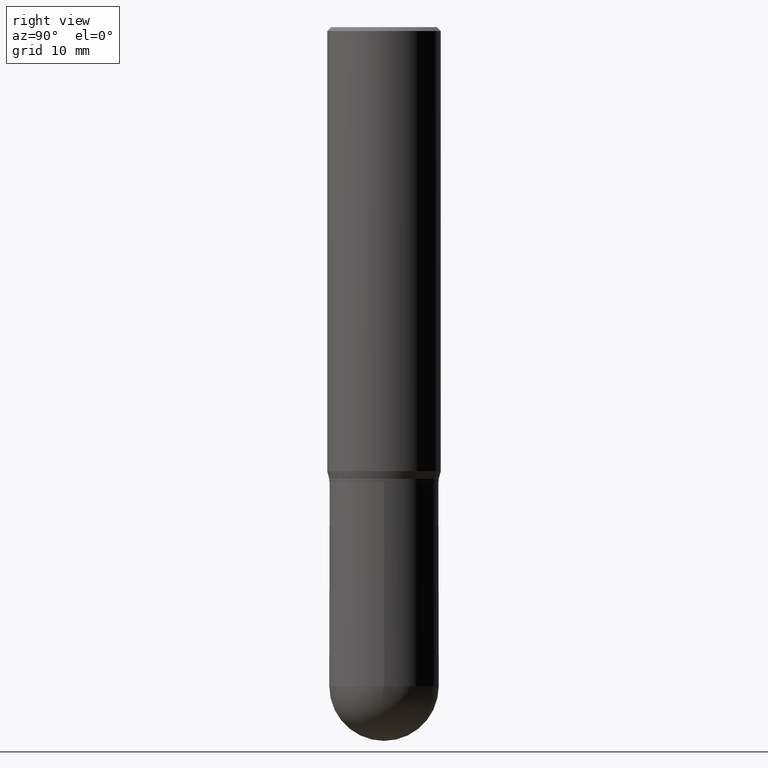
[diagram: clean part render]
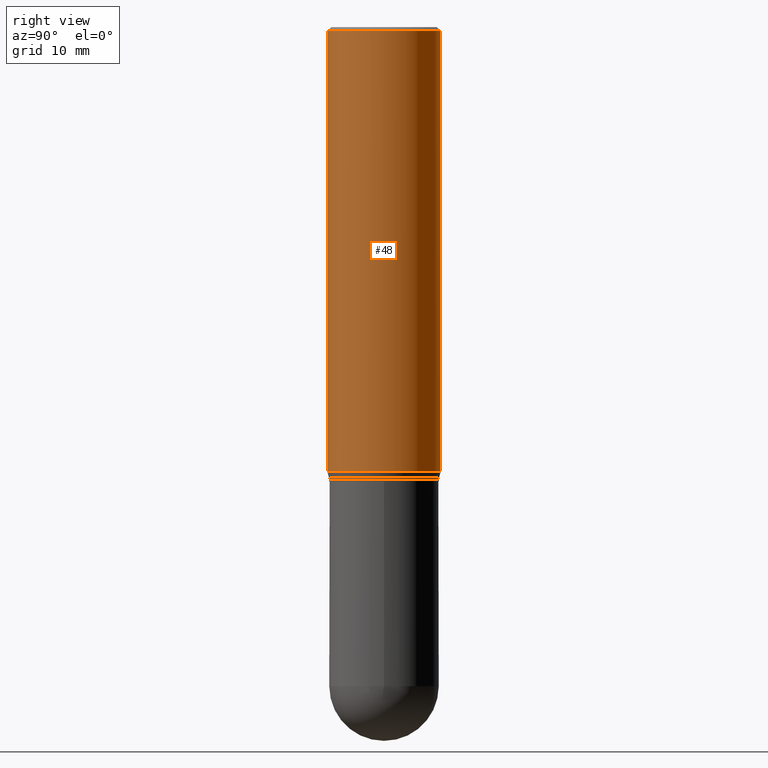
[diagram: same view with one face highlighted and labeled with its STEP entity id]
A machine part, right view. The second image highlights one B-rep face of the part: STEP entity #48.
In plain terms, the highlighted cylindrical surface (partial cylindrical patch) has radius 5.5562 mm, axis along (-0, 0, 1).
Its self-contained STEP definition (entity closure, byte-faithful):
#2 = FACE_OUTER_BOUND ( 'NONE', #461, .T. ) ;
#3 = DIRECTION ( 'NONE',  ( -6.982962677686265133E-15, -1.000000000000000000, 3.746534391310989557E-15 ) ) ;
#21 = AXIS2_PLACEMENT_3D ( 'NONE', #315, #38, #3 ) ;
#30 = CARTESIAN_POINT ( 'NONE',  ( 3.668151877640314350E-31, -5.237295518091239778E-17, -0.01500000000000023190 ) ) ;
#34 = CARTESIAN_POINT ( 'NONE',  ( -1.527523085743870054E-15, -0.2187500000000000555, -0.01499999999999946862 ) ) ;
#38 = DIRECTION ( 'NONE',  ( -2.445434585093504913E-29, 3.491530345394105536E-15, 1.000000000000000000 ) ) ;
#42 = DIRECTION ( 'NONE',  ( -2.445434585093504913E-29, 3.491530345394105536E-15, 1.000000000000000000 ) ) ;
#48 = ADVANCED_FACE ( 'NONE', ( #2 ), #321, .T. ) ;
#51 = ORIENTED_EDGE ( 'NONE', *, *, #382, .T. ) ;
#73 = ORIENTED_EDGE ( 'NONE', *, *, #204, .F. ) ;
#91 = VERTEX_POINT ( 'NONE', #438 ) ;
#99 = CARTESIAN_POINT ( 'NONE',  ( -1.527523085743828442E-15, -0.2187500000000059397, -1.710890003700962003 ) ) ;
#118 = AXIS2_PLACEMENT_3D ( 'NONE', #361, #42, #437 ) ;
#121 = LINE ( 'NONE', #273, #229 ) ;
#161 = CARTESIAN_POINT ( 'NONE',  ( 1.554312234475260769E-15, 0.2187499999999940603, -1.710890003700963558 ) ) ;
#189 = DIRECTION ( 'NONE',  ( -2.445434585093504913E-29, 3.491530345394105536E-15, 1.000000000000000000 ) ) ;
#204 = EDGE_CURVE ( 'NONE', #499, #91, #335, .T. ) ;
#213 = EDGE_CURVE ( 'NONE', #493, #499, #121, .T. ) ;
#228 = EDGE_CURVE ( 'NONE', #493, #266, #502, .T. ) ;
#229 = VECTOR ( 'NONE', #352, 39.37007874015748143 ) ;
#266 = VERTEX_POINT ( 'NONE', #161 ) ;
#273 = CARTESIAN_POINT ( 'NONE',  ( -1.527523085743870449E-15, -0.2187500000000000000, 7.637722630549605613E-16 ) ) ;
#293 = LINE ( 'NONE', #406, #317 ) ;
#315 = CARTESIAN_POINT ( 'NONE',  ( 4.183869586341088667E-29, -5.973624365553345919E-15, -1.710890003700962669 ) ) ;
#317 = VECTOR ( 'NONE', #374, 39.37007874015748143 ) ;
#321 = CYLINDRICAL_SURFACE ( 'NONE', #118, 0.2187500000000000000 ) ;
#335 = CIRCLE ( 'NONE', #425, 0.2187500000000000000 ) ;
#344 = DIRECTION ( 'NONE',  ( -6.982962677686265133E-15, -1.000000000000000000, 3.492862791899308071E-15 ) ) ;
#352 = DIRECTION ( 'NONE',  ( -2.445434585093504633E-29, 3.491530345394105536E-15, 1.000000000000000000 ) ) ;
#353 = ORIENTED_EDGE ( 'NONE', *, *, #228, .T. ) ;
#361 = CARTESIAN_POINT ( 'NONE',  ( 0.000000000000000000, 0.000000000000000000, 0.000000000000000000 ) ) ;
#374 = DIRECTION ( 'NONE',  ( -2.445434585093504633E-29, 3.491530345394105536E-15, 1.000000000000000000 ) ) ;
#382 = EDGE_CURVE ( 'NONE', #266, #91, #293, .T. ) ;
#406 = CARTESIAN_POINT ( 'NONE',  ( 1.554312234475218762E-15, 0.2187500000000000000, -7.637722630549605613E-16 ) ) ;
#425 = AXIS2_PLACEMENT_3D ( 'NONE', #30, #189, #344 ) ;
#437 = DIRECTION ( 'NONE',  ( -6.982962677686265133E-15, -1.000000000000000000, 3.491530345394105536E-15 ) ) ;
#438 = CARTESIAN_POINT ( 'NONE',  ( 1.554312234475260966E-15, 0.2187499999999999167, -0.01500000000000099691 ) ) ;
#444 = ORIENTED_EDGE ( 'NONE', *, *, #213, .F. ) ;
#461 = EDGE_LOOP ( 'NONE', ( #353, #51, #73, #444 ) ) ;
#493 = VERTEX_POINT ( 'NONE', #99 ) ;
#499 = VERTEX_POINT ( 'NONE', #34 ) ;
#502 = CIRCLE ( 'NONE', #21, 0.2187500000000000000 ) ;